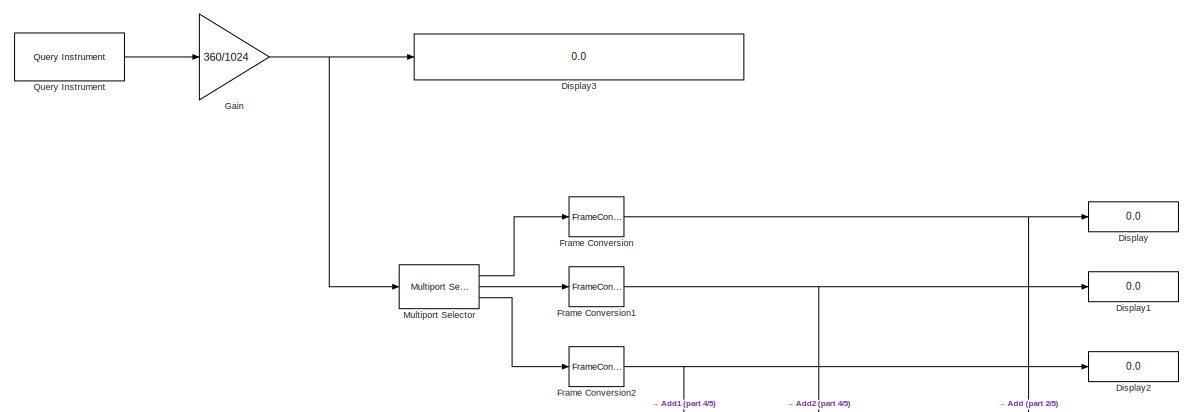
[diagram: root canvas - part 1/5, top left region]
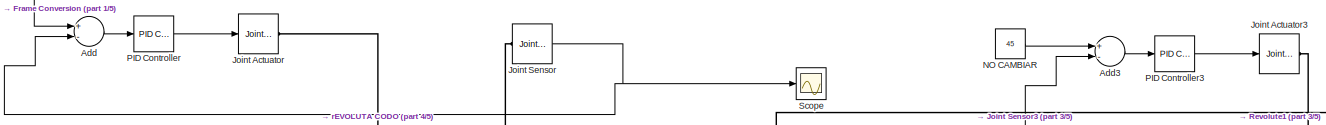
[diagram: root canvas - part 2/5, top center region]
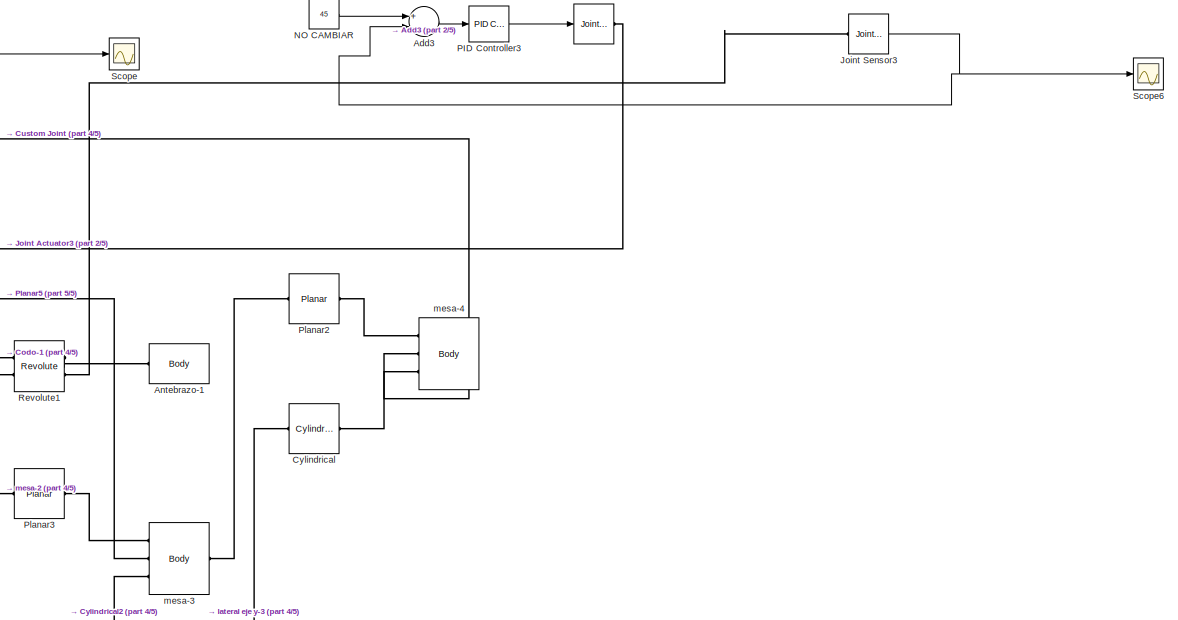
[diagram: root canvas - part 3/5, middle right region]
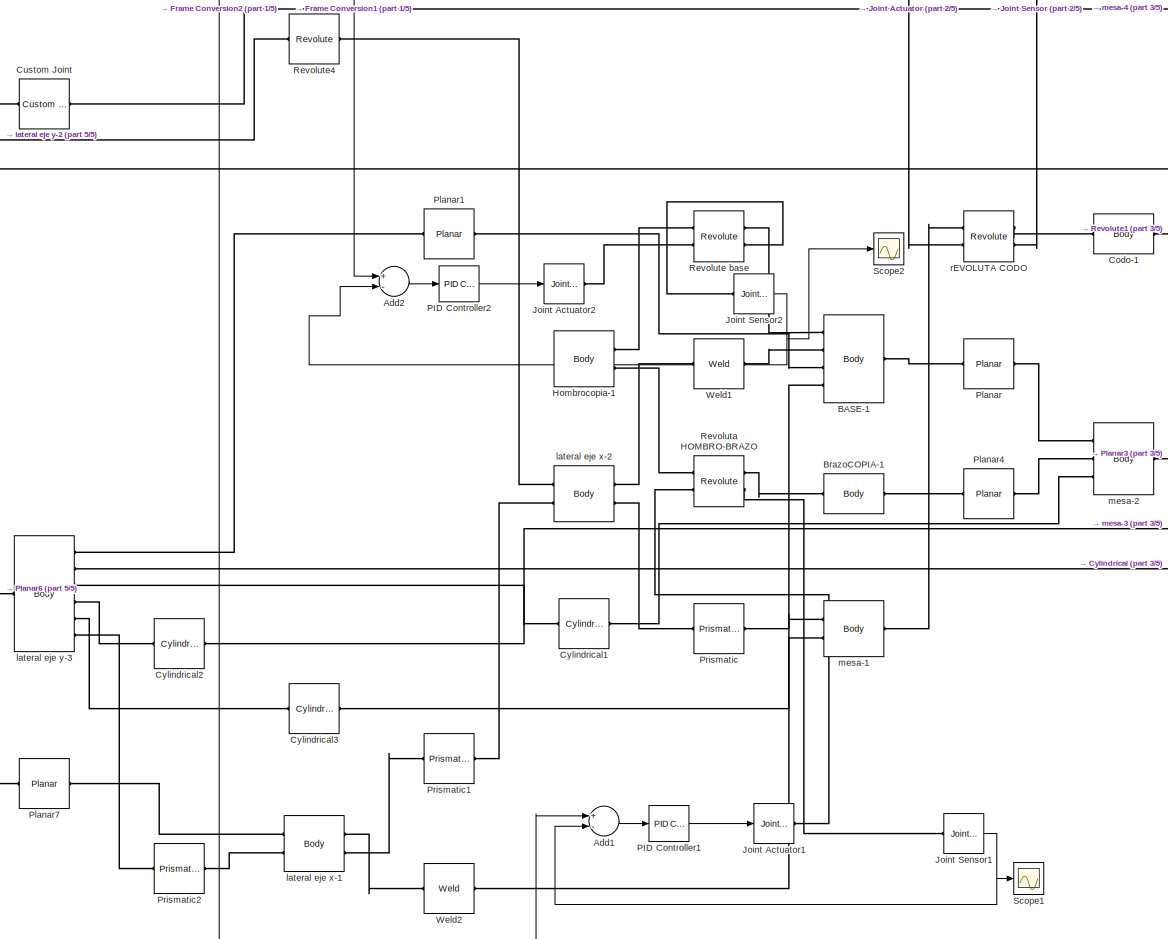
[diagram: root canvas - part 4/5, bottom center region]
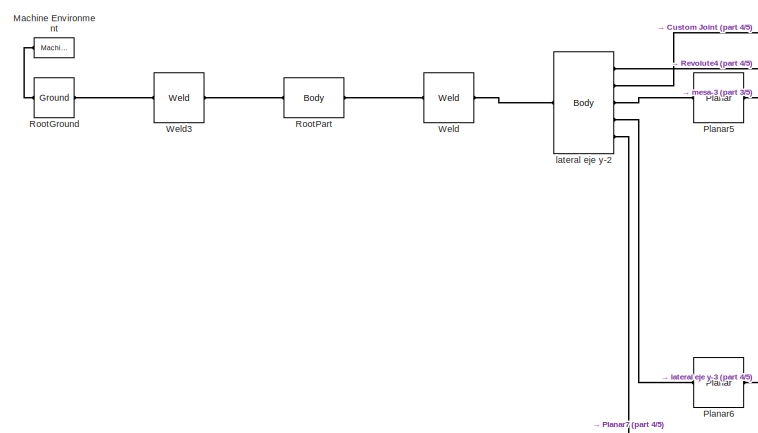
[diagram: root canvas - part 5/5, middle left region]
MODEL slx_394799fc51d2
KIND model
CONFIG AbsTol = auto
CONFIG EnableMultiTasking = off
CONFIG FixedStep = auto
CONFIG MaxStep = auto
CONFIG MinStep = auto
CONFIG RelTol = 1e-3
CONFIG SampleTimeConstraint = Unconstrained
CONFIG Solver = ode45
CONFIG SolverName = ode45
CONFIG StartTime = 0.0
CONFIG StopTime = inf
BLOCK [Sum] Add
  InputSameDT = off
  Inputs = +-
  OutDataTypeStr = Inherit: Inherit via internal rule
  Ports = [2, 1]
  SaturateOnIntegerOverflow = off
BLOCK [Sum] Add1
  InputSameDT = off
  Inputs = +-
  OutDataTypeStr = Inherit: Inherit via internal rule
  Ports = [2, 1]
  SaturateOnIntegerOverflow = off
BLOCK [Sum] Add2
  InputSameDT = off
  Inputs = +-
  OutDataTypeStr = Inherit: Inherit via internal rule
  Ports = [2, 1]
  SaturateOnIntegerOverflow = off
BLOCK [Sum] Add3
  InputSameDT = off
  Inputs = +-
  OutDataTypeStr = Inherit: Inherit via internal rule
  Ports = [2, 1]
  SaturateOnIntegerOverflow = off
BLOCK [Reference] Antebrazo-1  REF=mblibv1/Bodies/Body
  Ports = [0, 0, 0, 0, 0, 1]
  SourceBlock = mblibv1/Bodies/Body
  SourceProductBaseCode = MS
  SourceProductName = Simscape Multibody
  SourceType = Body
BLOCK [Reference] BASE-1  REF=mblibv1/Bodies/Body
  Ports = [0, 0, 0, 0, 0, 4, 1]
  SourceBlock = mblibv1/Bodies/Body
  SourceProductBaseCode = MS
  SourceProductName = Simscape Multibody
  SourceType = Body
BLOCK [Reference] BrazoCOPIA-1  REF=mblibv1/Bodies/Body
  Ports = [0, 0, 0, 0, 0, 1, 1]
  SourceBlock = mblibv1/Bodies/Body
  SourceProductBaseCode = MS
  SourceProductName = Simscape Multibody
  SourceType = Body
BLOCK [Reference] Codo-1  REF=mblibv1/Bodies/Body
  Ports = [0, 0, 0, 0, 0, 1, 1]
  SourceBlock = mblibv1/Bodies/Body
  SourceProductBaseCode = MS
  SourceProductName = Simscape Multibody
  SourceType = Body
BLOCK [Reference] Custom Joint  REF=mblibv1/Joints/Custom Joint
  Ports = [0, 0, 0, 0, 0, 1, 1]
  SourceBlock = mblibv1/Joints/Custom Joint
  SourceProductBaseCode = MS
  SourceProductName = Simscape Multibody
  SourceType = Custom Joint
BLOCK [Reference] Cylindrical  REF=mblibv1/Joints/Cylindrical
  Ports = [0, 0, 0, 0, 0, 1, 1]
  SourceBlock = mblibv1/Joints/Cylindrical
  SourceProductBaseCode = MS
  SourceProductName = Simscape Multibody
  SourceType = Cylindrical
BLOCK [Reference] Cylindrical1  REF=mblibv1/Joints/Cylindrical
  Ports = [0, 0, 0, 0, 0, 1, 1]
  SourceBlock = mblibv1/Joints/Cylindrical
  SourceProductBaseCode = MS
  SourceProductName = Simscape Multibody
  SourceType = Cylindrical
BLOCK [Reference] Cylindrical2  REF=mblibv1/Joints/Cylindrical
  Ports = [0, 0, 0, 0, 0, 1, 1]
  SourceBlock = mblibv1/Joints/Cylindrical
  SourceProductBaseCode = MS
  SourceProductName = Simscape Multibody
  SourceType = Cylindrical
BLOCK [Reference] Cylindrical3  REF=mblibv1/Joints/Cylindrical
  Ports = [0, 0, 0, 0, 0, 1, 1]
  SourceBlock = mblibv1/Joints/Cylindrical
  SourceProductBaseCode = MS
  SourceProductName = Simscape Multibody
  SourceType = Cylindrical
BLOCK [Display] Display
  Decimation = 1
  Ports = [1]
BLOCK [Display] Display1
  Decimation = 1
  Ports = [1]
BLOCK [Display] Display2
  Decimation = 1
  Ports = [1]
BLOCK [Display] Display3
  Decimation = 1
  Ports = [1]
BLOCK [FrameConversion] Frame Conversion
  InheritSamplingMode = off
  OutFrame = Sample-based
  Ports = [1, 1]
BLOCK [FrameConversion] Frame Conversion1
  InheritSamplingMode = off
  OutFrame = Sample-based
  Ports = [1, 1]
BLOCK [FrameConversion] Frame Conversion2
  InheritSamplingMode = off
  OutFrame = Sample-based
  Ports = [1, 1]
BLOCK [Gain] Gain
  Gain = 360/1024
  OutDataTypeStr = Inherit: Inherit via internal rule
  ParamDataTypeStr = Inherit: Inherit via internal rule
  SaturateOnIntegerOverflow = off
BLOCK [Reference] Hombrocopia-1  REF=mblibv1/Bodies/Body
  Ports = [0, 0, 0, 0, 0, 0, 2]
  SourceBlock = mblibv1/Bodies/Body
  SourceProductBaseCode = MS
  SourceProductName = Simscape Multibody
  SourceType = Body
BLOCK [Reference] Joint Actuator  REF=mblibv1/Sensors & 
Actuators/Joint Actuator
  Ports = [1, 0, 0, 0, 0, 0, 1]
  SourceBlock = mblibv1/Sensors & \nActuators/Joint Actuator
  SourceProductBaseCode = MS
  SourceProductName = Simscape Multibody
  SourceType = Joint Actuator
BLOCK [Reference] Joint Actuator1  REF=mblibv1/Sensors & 
Actuators/Joint Actuator
  Ports = [1, 0, 0, 0, 0, 0, 1]
  SourceBlock = mblibv1/Sensors & \nActuators/Joint Actuator
  SourceProductBaseCode = MS
  SourceProductName = Simscape Multibody
  SourceType = Joint Actuator
BLOCK [Reference] Joint Actuator2  REF=mblibv1/Sensors & 
Actuators/Joint Actuator
  Ports = [1, 0, 0, 0, 0, 0, 1]
  SourceBlock = mblibv1/Sensors & \nActuators/Joint Actuator
  SourceProductBaseCode = MS
  SourceProductName = Simscape Multibody
  SourceType = Joint Actuator
BLOCK [Reference] Joint Actuator3  REF=mblibv1/Sensors & 
Actuators/Joint Actuator
  Ports = [1, 0, 0, 0, 0, 0, 1]
  SourceBlock = mblibv1/Sensors & \nActuators/Joint Actuator
  SourceProductBaseCode = MS
  SourceProductName = Simscape Multibody
  SourceType = Joint Actuator
BLOCK [Reference] Joint Sensor  REF=mblibv1/Sensors & 
Actuators/Joint Sensor
  Ports = [0, 1, 0, 0, 0, 1]
  SourceBlock = mblibv1/Sensors & \nActuators/Joint Sensor
  SourceProductBaseCode = MS
  SourceProductName = Simscape Multibody
  SourceType = Joint Sensor
BLOCK [Reference] Joint Sensor1  REF=mblibv1/Sensors & 
Actuators/Joint Sensor
  Ports = [0, 1, 0, 0, 0, 1]
  SourceBlock = mblibv1/Sensors & \nActuators/Joint Sensor
  SourceProductBaseCode = MS
  SourceProductName = Simscape Multibody
  SourceType = Joint Sensor
BLOCK [Reference] Joint Sensor2  REF=mblibv1/Sensors & 
Actuators/Joint Sensor
  Ports = [0, 1, 0, 0, 0, 1]
  SourceBlock = mblibv1/Sensors & \nActuators/Joint Sensor
  SourceProductBaseCode = MS
  SourceProductName = Simscape Multibody
  SourceType = Joint Sensor
BLOCK [Reference] Joint Sensor3  REF=mblibv1/Sensors & 
Actuators/Joint Sensor
  Ports = [0, 1, 0, 0, 0, 1]
  SourceBlock = mblibv1/Sensors & \nActuators/Joint Sensor
  SourceProductBaseCode = MS
  SourceProductName = Simscape Multibody
  SourceType = Joint Sensor
BLOCK [Reference] Machine Environment  REF=mblibv1/Bodies/Machine
Environment
  Ports = [0, 0, 0, 0, 0, 0, 1]
  SourceBlock = mblibv1/Bodies/Machine\nEnvironment
  SourceProductBaseCode = MS
  SourceProductName = Simscape Multibody
  SourceType = Machine Environment
BLOCK [Reference] Multiport Selector  REF=dspindex/Multiport
Selector
  Ports = [1, 3]
  SourceBlock = dspindex/Multiport\nSelector
  SourceProductBaseCode = DS
  SourceProductName = DSP System Toolbox
  SourceType = Multiport Selector
BLOCK [Constant] NO CAMBIAR
  Value = 45
BLOCK [Reference] PID Controller  REF=simulink/Continuous/PID Controller
  Ports = [1, 1]
  SourceBlock = simulink/Continuous/PID Controller
  SourceProductBaseCode = SL
  SourceProductName = Simulink
  SourceType = PID 1dof
BLOCK [Reference] PID Controller1  REF=simulink/Continuous/PID Controller
  Ports = [1, 1]
  SourceBlock = simulink/Continuous/PID Controller
  SourceProductBaseCode = SL
  SourceProductName = Simulink
  SourceType = PID 1dof
BLOCK [Reference] PID Controller2  REF=simulink/Continuous/PID Controller
  Ports = [1, 1]
  SourceBlock = simulink/Continuous/PID Controller
  SourceProductBaseCode = SL
  SourceProductName = Simulink
  SourceType = PID 1dof
BLOCK [Reference] PID Controller3  REF=simulink/Continuous/PID Controller
  Ports = [1, 1]
  SourceBlock = simulink/Continuous/PID Controller
  SourceProductBaseCode = SL
  SourceProductName = Simulink
  SourceType = PID 1dof
BLOCK [Reference] Planar  REF=mblibv1/Joints/Planar
  Ports = [0, 0, 0, 0, 0, 1, 1]
  SourceBlock = mblibv1/Joints/Planar
  SourceProductBaseCode = MS
  SourceProductName = Simscape Multibody
  SourceType = Planar
BLOCK [Reference] Planar1  REF=mblibv1/Joints/Planar
  Ports = [0, 0, 0, 0, 0, 1, 1]
  SourceBlock = mblibv1/Joints/Planar
  SourceProductBaseCode = MS
  SourceProductName = Simscape Multibody
  SourceType = Planar
BLOCK [Reference] Planar2  REF=mblibv1/Joints/Planar
  Ports = [0, 0, 0, 0, 0, 1, 1]
  SourceBlock = mblibv1/Joints/Planar
  SourceProductBaseCode = MS
  SourceProductName = Simscape Multibody
  SourceType = Planar
BLOCK [Reference] Planar3  REF=mblibv1/Joints/Planar
  Ports = [0, 0, 0, 0, 0, 1, 1]
  SourceBlock = mblibv1/Joints/Planar
  SourceProductBaseCode = MS
  SourceProductName = Simscape Multibody
  SourceType = Planar
BLOCK [Reference] Planar4  REF=mblibv1/Joints/Planar
  Ports = [0, 0, 0, 0, 0, 1, 1]
  SourceBlock = mblibv1/Joints/Planar
  SourceProductBaseCode = MS
  SourceProductName = Simscape Multibody
  SourceType = Planar
BLOCK [Reference] Planar5  REF=mblibv1/Joints/Planar
  Ports = [0, 0, 0, 0, 0, 1, 1]
  SourceBlock = mblibv1/Joints/Planar
  SourceProductBaseCode = MS
  SourceProductName = Simscape Multibody
  SourceType = Planar
BLOCK [Reference] Planar6  REF=mblibv1/Joints/Planar
  Ports = [0, 0, 0, 0, 0, 1, 1]
  SourceBlock = mblibv1/Joints/Planar
  SourceProductBaseCode = MS
  SourceProductName = Simscape Multibody
  SourceType = Planar
BLOCK [Reference] Planar7  REF=mblibv1/Joints/Planar
  Ports = [0, 0, 0, 0, 0, 1, 1]
  SourceBlock = mblibv1/Joints/Planar
  SourceProductBaseCode = MS
  SourceProductName = Simscape Multibody
  SourceType = Planar
BLOCK [Reference] Prismatic  REF=mblibv1/Joints/Prismatic
  Ports = [0, 0, 0, 0, 0, 1, 1]
  SourceBlock = mblibv1/Joints/Prismatic
  SourceProductBaseCode = MS
  SourceProductName = Simscape Multibody
  SourceType = Prismatic
BLOCK [Reference] Prismatic1  REF=mblibv1/Joints/Prismatic
  Ports = [0, 0, 0, 0, 0, 1, 1]
  SourceBlock = mblibv1/Joints/Prismatic
  SourceProductBaseCode = MS
  SourceProductName = Simscape Multibody
  SourceType = Prismatic
BLOCK [Reference] Prismatic2  REF=mblibv1/Joints/Prismatic
  Ports = [0, 0, 0, 0, 0, 1, 1]
  SourceBlock = mblibv1/Joints/Prismatic
  SourceProductBaseCode = MS
  SourceProductName = Simscape Multibody
  SourceType = Prismatic
BLOCK [Reference] Query Instrument  REF=instrumentlib/Query Instrument
  Ports = [0, 1]
  SourceBlock = instrumentlib/Query Instrument
  SourceProductBaseCode = IC
  SourceProductName = Instrument Control Toolbox
  SourceType = queryinstrument
BLOCK [Reference] Revoluta HOMBRO-BRAZO  REF=mblibv1/Joints/Revolute
  Ports = [0, 0, 0, 0, 0, 2, 2]
  SourceBlock = mblibv1/Joints/Revolute
  SourceProductBaseCode = MS
  SourceProductName = Simscape Multibody
  SourceType = Revolute
BLOCK [Reference] Revolute base  REF=mblibv1/Joints/Revolute
  Ports = [0, 0, 0, 0, 0, 2, 2]
  SourceBlock = mblibv1/Joints/Revolute
  SourceProductBaseCode = MS
  SourceProductName = Simscape Multibody
  SourceType = Revolute
BLOCK [Reference] Revolute1  REF=mblibv1/Joints/Revolute
  Ports = [0, 0, 0, 0, 0, 2, 2]
  SourceBlock = mblibv1/Joints/Revolute
  SourceProductBaseCode = MS
  SourceProductName = Simscape Multibody
  SourceType = Revolute
BLOCK [Reference] Revolute4  REF=mblibv1/Joints/Revolute
  Ports = [0, 0, 0, 0, 0, 1, 1]
  SourceBlock = mblibv1/Joints/Revolute
  SourceProductBaseCode = MS
  SourceProductName = Simscape Multibody
  SourceType = Revolute
BLOCK [Reference] RootGround  REF=mblibv1/Bodies/Ground
  Ports = [0, 0, 0, 0, 0, 1, 1]
  SourceBlock = mblibv1/Bodies/Ground
  SourceProductBaseCode = MS
  SourceProductName = Simscape Multibody
  SourceType = Ground
  UserDataPersistent = on
BLOCK [Reference] RootPart  REF=mblibv1/Bodies/Body
  Ports = [0, 0, 0, 0, 0, 1, 1]
  SourceBlock = mblibv1/Bodies/Body
  SourceProductBaseCode = MS
  SourceProductName = Simscape Multibody
  SourceType = Body
BLOCK [Scope] Scope
  NumInputPorts = 1
  Ports = [1]
  ScopeSpecificationString = Simulink.scopes.TimeScopeBlockCfg('CurrentConfiguration', extmgr.ConfigurationSet(extmgr.Configuration('Core','General UI',true),extmgr.Configuration('Core','Source UI',true),extmgr.Configuration('Sources','WiredSimulink',true,'DataLoggingLimitDataPoints',true,'DataLoggingSaveFormat','Array','DataLoggingDecimation','1','DataLoggingDecimateData',true),extmgr.Configuration('Visuals','Time Domain',tr...<+860ch>
BLOCK [Scope] Scope1
  NumInputPorts = 1
  Ports = [1]
  ScopeSpecificationString = Simulink.scopes.TimeScopeBlockCfg('CurrentConfiguration', extmgr.ConfigurationSet(extmgr.Configuration('Core','General UI',true),extmgr.Configuration('Core','Source UI',true),extmgr.Configuration('Sources','WiredSimulink',true,'DataLoggingLimitDataPoints',true,'DataLoggingSaveFormat','Array','DataLoggingDecimation','1','DataLoggingDecimateData',true,'DataLoggingVariableName','ScopeData1'),extmgr.C...<+899ch>
BLOCK [Scope] Scope2
  NumInputPorts = 1
  Ports = [1]
  ScopeSpecificationString = Simulink.scopes.TimeScopeBlockCfg('CurrentConfiguration', extmgr.ConfigurationSet(extmgr.Configuration('Core','General UI',true),extmgr.Configuration('Core','Source UI',true),extmgr.Configuration('Sources','WiredSimulink',true,'DataLoggingLimitDataPoints',true,'DataLoggingSaveFormat','Array','DataLoggingDecimation','1','DataLoggingDecimateData',true,'DataLoggingVariableName','ScopeData2'),extmgr.C...<+899ch>
BLOCK [Scope] Scope6
  NumInputPorts = 1
  Ports = [1]
  ScopeSpecificationString = Simulink.scopes.TimeScopeBlockCfg('CurrentConfiguration', extmgr.ConfigurationSet(extmgr.Configuration('Core','General UI',true),extmgr.Configuration('Core','Source UI',true),extmgr.Configuration('Sources','WiredSimulink',true,'DataLoggingLimitDataPoints',true,'DataLoggingSaveFormat','Array','DataLoggingDecimation','1','DataLoggingDecimateData',true,'DataLoggingVariableName','ScopeData6'),extmgr.C...<+899ch>
BLOCK [Reference] Weld  REF=mblibv1/Joints/Weld
  Ports = [0, 0, 0, 0, 0, 1, 1]
  SourceBlock = mblibv1/Joints/Weld
  SourceProductBaseCode = MS
  SourceProductName = Simscape Multibody
  SourceType = Weld
BLOCK [Reference] Weld1  REF=mblibv1/Joints/Weld
  Ports = [0, 0, 0, 0, 0, 1, 1]
  SourceBlock = mblibv1/Joints/Weld
  SourceProductBaseCode = MS
  SourceProductName = Simscape Multibody
  SourceType = Weld
BLOCK [Reference] Weld2  REF=mblibv1/Joints/Weld
  Ports = [0, 0, 0, 0, 0, 1, 1]
  SourceBlock = mblibv1/Joints/Weld
  SourceProductBaseCode = MS
  SourceProductName = Simscape Multibody
  SourceType = Weld
BLOCK [Reference] Weld3  REF=mblibv1/Joints/Weld
  Ports = [0, 0, 0, 0, 0, 1, 1]
  SourceBlock = mblibv1/Joints/Weld
  SourceProductBaseCode = MS
  SourceProductName = Simscape Multibody
  SourceType = Weld
BLOCK [Reference] lateral eje x-1  REF=mblibv1/Bodies/Body
  Ports = [0, 0, 0, 0, 0, 2, 2]
  SourceBlock = mblibv1/Bodies/Body
  SourceProductBaseCode = MS
  SourceProductName = Simscape Multibody
  SourceType = Body
BLOCK [Reference] lateral eje x-2  REF=mblibv1/Bodies/Body
  Ports = [0, 0, 0, 0, 0, 2, 2]
  SourceBlock = mblibv1/Bodies/Body
  SourceProductBaseCode = MS
  SourceProductName = Simscape Multibody
  SourceType = Body
BLOCK [Reference] lateral eje y-2  REF=mblibv1/Bodies/Body
  Ports = [0, 0, 0, 0, 0, 1, 5]
  SourceBlock = mblibv1/Bodies/Body
  SourceProductBaseCode = MS
  SourceProductName = Simscape Multibody
  SourceType = Body
BLOCK [Reference] lateral eje y-3  REF=mblibv1/Bodies/Body
  Ports = [0, 0, 0, 0, 0, 1, 6]
  SourceBlock = mblibv1/Bodies/Body
  SourceProductBaseCode = MS
  SourceProductName = Simscape Multibody
  SourceType = Body
BLOCK [Reference] mesa-1  REF=mblibv1/Bodies/Body
  Ports = [0, 0, 0, 0, 0, 2, 1]
  SourceBlock = mblibv1/Bodies/Body
  SourceProductBaseCode = MS
  SourceProductName = Simscape Multibody
  SourceType = Body
BLOCK [Reference] mesa-2  REF=mblibv1/Bodies/Body
  Ports = [0, 0, 0, 0, 0, 3, 1]
  SourceBlock = mblibv1/Bodies/Body
  SourceProductBaseCode = MS
  SourceProductName = Simscape Multibody
  SourceType = Body
BLOCK [Reference] mesa-3  REF=mblibv1/Bodies/Body
  Ports = [0, 0, 0, 0, 0, 3, 1]
  SourceBlock = mblibv1/Bodies/Body
  SourceProductBaseCode = MS
  SourceProductName = Simscape Multibody
  SourceType = Body
BLOCK [Reference] mesa-4  REF=mblibv1/Bodies/Body
  Ports = [0, 0, 0, 0, 0, 3]
  SourceBlock = mblibv1/Bodies/Body
  SourceProductBaseCode = MS
  SourceProductName = Simscape Multibody
  SourceType = Body
BLOCK [Reference] rEVOLUTA CODO  REF=mblibv1/Joints/Revolute
  Ports = [0, 0, 0, 0, 0, 2, 2]
  SourceBlock = mblibv1/Joints/Revolute
  SourceProductBaseCode = MS
  SourceProductName = Simscape Multibody
  SourceType = Revolute
LINE Add1:1 -> PID Controller1:1
LINE Add2:1 -> PID Controller2:1
LINE Add3:1 -> PID Controller3:1
LINE Add:1 -> PID Controller:1
NET Frame Conversion1:1 -> Add2:1, Display1:1
NET Frame Conversion2:1 -> Add1:1, Display2:1
NET Frame Conversion:1 -> Add:1, Display:1
NET Gain:1 -> Display3:1, Multiport Selector:1
NET Joint Sensor1:1 -> Add1:2, Scope1:1
NET Joint Sensor2:1 -> Add2:2, Scope2:1
NET Joint Sensor3:1 -> Add3:2, Scope6:1
NET Joint Sensor:1 -> Add:2, Scope:1
LINE Multiport Selector:1 -> Frame Conversion:1
LINE Multiport Selector:2 -> Frame Conversion1:1
LINE Multiport Selector:3 -> Frame Conversion2:1
LINE NO CAMBIAR:1 -> Add3:1
LINE PID Controller1:1 -> Joint Actuator1:1
LINE PID Controller2:1 -> Joint Actuator2:1
LINE PID Controller3:1 -> Joint Actuator3:1
LINE PID Controller:1 -> Joint Actuator:1
LINE Query Instrument:1 -> Gain:1
PLINE Antebrazo-1:LConn1 -- Revolute1:RConn1
PLINE BASE-1:LConn1 -- Revolute base:RConn1
PLINE BASE-1:LConn2 -- Weld1:RConn1
PLINE BASE-1:LConn3 -- Planar1:RConn1
PLINE BASE-1:LConn4 -- Weld2:RConn1
PLINE BASE-1:RConn1 -- Planar:LConn1
PLINE BrazoCOPIA-1:LConn1 -- Revoluta HOMBRO-BRAZO:RConn1
PLINE BrazoCOPIA-1:RConn1 -- rEVOLUTA CODO:LConn1
PLINE Codo-1:LConn1 -- rEVOLUTA CODO:RConn1
PLINE Codo-1:RConn1 -- Revolute1:LConn1
PLINE Custom Joint:LConn1 -- lateral eje y-2:RConn2
PLINE Custom Joint:RConn1 -- mesa-4:LConn2
PLINE Cylindrical1:LConn1 -- lateral eje y-3:RConn3
PLINE Cylindrical1:RConn1 -- mesa-2:LConn3
PLINE Cylindrical2:LConn1 -- lateral eje y-3:RConn4
PLINE Cylindrical2:RConn1 -- mesa-3:LConn3
PLINE Cylindrical3:LConn1 -- lateral eje y-3:RConn5
PLINE Cylindrical3:RConn1 -- mesa-1:LConn2
PLINE Cylindrical:LConn1 -- lateral eje y-3:RConn2
PLINE Cylindrical:RConn1 -- mesa-4:LConn3
PLINE Hombrocopia-1:RConn1 -- Revolute base:LConn1
PLINE Hombrocopia-1:RConn2 -- Revoluta HOMBRO-BRAZO:LConn1
PLINE Joint Actuator1:RConn1 -- Revoluta HOMBRO-BRAZO:LConn2
PLINE Joint Actuator2:RConn1 -- Revolute base:LConn2
PLINE Joint Actuator3:RConn1 -- Revolute1:LConn2
PLINE Joint Actuator:RConn1 -- rEVOLUTA CODO:LConn2
PLINE Joint Sensor1:LConn1 -- Revoluta HOMBRO-BRAZO:RConn2
PLINE Joint Sensor2:LConn1 -- Revolute base:RConn2
PLINE Joint Sensor3:LConn1 -- Revolute1:RConn2
PLINE Joint Sensor:LConn1 -- rEVOLUTA CODO:RConn2
PLINE Machine Environment:RConn1 -- RootGround:LConn1
PLINE Planar1:LConn1 -- lateral eje y-3:RConn1
PLINE Planar2:LConn1 -- mesa-3:RConn1
PLINE Planar2:RConn1 -- mesa-4:LConn1
PLINE Planar3:LConn1 -- mesa-2:RConn1
PLINE Planar3:RConn1 -- mesa-3:LConn1
PLINE Planar4:LConn1 -- mesa-1:RConn1
PLINE Planar4:RConn1 -- mesa-2:LConn2
PLINE Planar5:LConn1 -- lateral eje y-2:RConn3
PLINE Planar5:RConn1 -- mesa-3:LConn2
PLINE Planar6:LConn1 -- lateral eje y-2:RConn4
PLINE Planar6:RConn1 -- lateral eje y-3:LConn1
PLINE Planar7:LConn1 -- lateral eje y-2:RConn5
PLINE Planar7:RConn1 -- lateral eje x-1:LConn1
PLINE Planar:RConn1 -- mesa-2:LConn1
PLINE Prismatic1:LConn1 -- lateral eje x-1:RConn2
PLINE Prismatic1:RConn1 -- lateral eje x-2:LConn2
PLINE Prismatic2:LConn1 -- lateral eje y-3:RConn6
PLINE Prismatic2:RConn1 -- lateral eje x-1:LConn2
PLINE Prismatic:LConn1 -- lateral eje x-2:RConn2
PLINE Prismatic:RConn1 -- mesa-1:LConn1
PLINE Revolute4:LConn1 -- lateral eje y-2:RConn1
PLINE Revolute4:RConn1 -- lateral eje x-2:LConn1
PLINE RootGround:RConn1 -- Weld3:LConn1
PLINE RootPart:LConn1 -- Weld3:RConn1
PLINE RootPart:RConn1 -- Weld:LConn1
PLINE Weld1:LConn1 -- lateral eje x-2:RConn1
PLINE Weld2:LConn1 -- lateral eje x-1:RConn1
PLINE Weld:RConn1 -- lateral eje y-2:LConn1
note: NET lines group one-source signal fan-out (src -> all destinations, sorted); 1:1 wires keep LINE
